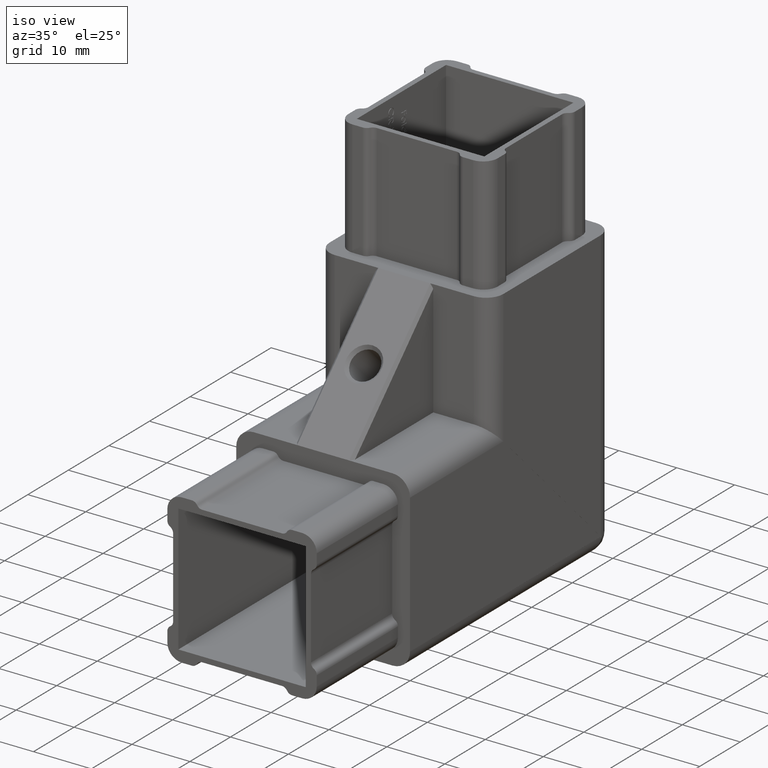
[diagram: clean part render]
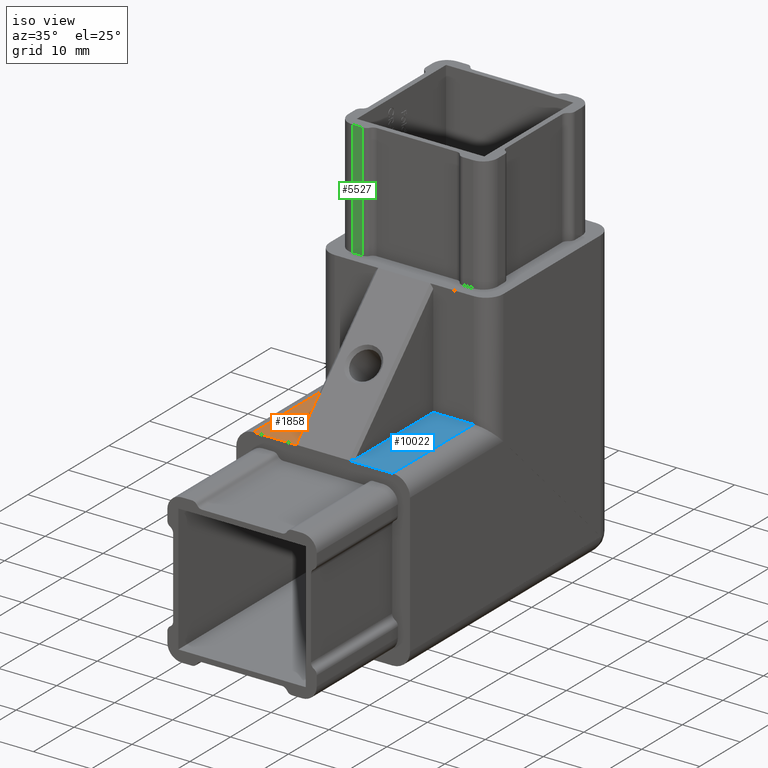
[diagram: same view with three faces highlighted in distinct colors, each labeled with its STEP entity id]
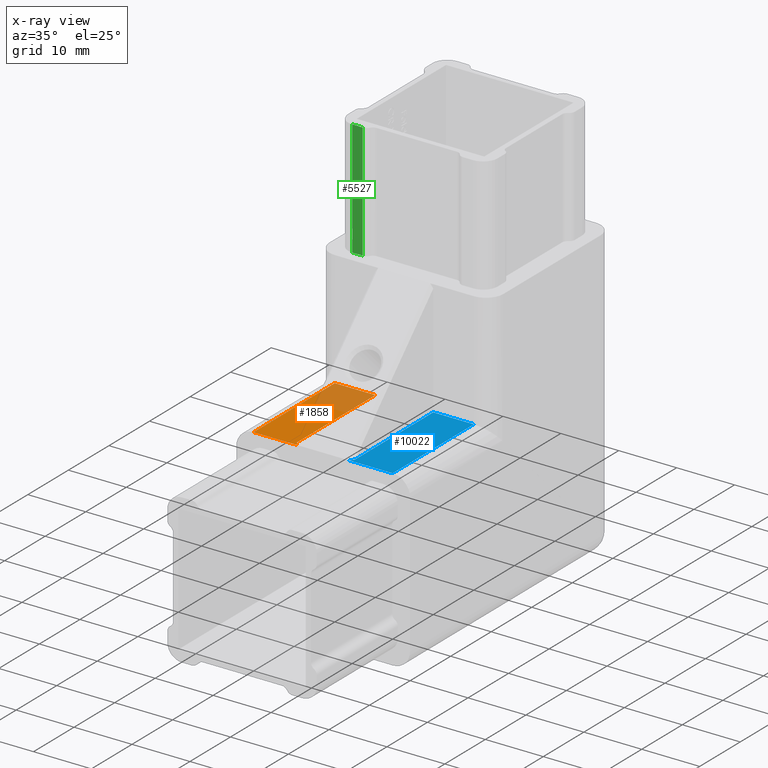
[diagram: x-ray of the same camera — body ghosted, the three highlighted faces saturated]
A machine part, iso view with three faces highlighted in distinct colors.
The next image is the same camera in x-ray (body ghosted, the three faces saturated) — at least one of them is partly hidden behind the body in this view.
Their STEP definitions:

[orange] entity #1858 — the highlighted planar face has unit normal (0, 0, 1).
#195 = CARTESIAN_POINT ( 'NONE',  ( 3.000000000000000000, -3.673940397442059200E-015, 30.00000000000000000 ) ) ;
#306 = VERTEX_POINT ( 'NONE', #8809 ) ;
#424 = CARTESIAN_POINT ( 'NONE',  ( 17.57106781194546100, -9.999999999773818300, 30.00000000000000000 ) ) ;
#877 = ORIENTED_EDGE ( 'NONE', *, *, #3693, .T. ) ;
#1858 = ADVANCED_FACE ( 'NONE', ( #12267 ), #5486, .T. ) ;
#2071 = VECTOR ( 'NONE', #10798, 1000.000000000000100 ) ;
#3693 = EDGE_CURVE ( 'NONE', #5043, #306, #6792, .T. ) ;
#4381 = LINE ( 'NONE', #15672, #14923 ) ;
#4666 = CARTESIAN_POINT ( 'NONE',  ( 9.999999998742323400, 500000.0000000000600, 29.99999999997271500 ) ) ;
#5043 = VERTEX_POINT ( 'NONE', #15084 ) ;
#5434 = VERTEX_POINT ( 'NONE', #5964 ) ;
#5486 = PLANE ( 'NONE',  #6763 ) ;
#5542 = DIRECTION ( 'NONE',  ( 1.000000000000000000, 0.0000000000000000000, -0.0000000000000000000 ) ) ;
#5903 = EDGE_LOOP ( 'NONE', ( #8791, #14372, #9453, #877, #14853 ) ) ;
#5964 = CARTESIAN_POINT ( 'NONE',  ( 2.999999999999999100, -3.673940397442059200E-015, 30.00000000000000000 ) ) ;
#6763 = AXIS2_PLACEMENT_3D ( 'NONE', #6797, #11965, #5542 ) ;
#6792 = LINE ( 'NONE', #424, #2071 ) ;
#6797 = CARTESIAN_POINT ( 'NONE',  ( 30.00000000000000000, -3.673940397442059200E-015, 30.00000000000000000 ) ) ;
#6959 = LINE ( 'NONE', #16630, #9171 ) ;
#7110 = LINE ( 'NONE', #195, #10110 ) ;
#7925 = DIRECTION ( 'NONE',  ( -1.000000000000000000, -0.0000000000000000000, -0.0000000000000000000 ) ) ;
#7933 = EDGE_CURVE ( 'NONE', #5043, #5434, #4381, .T. ) ;
#8604 = EDGE_CURVE ( 'NONE', #306, #8611, #9629, .T. ) ;
#8611 = VERTEX_POINT ( 'NONE', #11151 ) ;
#8791 = ORIENTED_EDGE ( 'NONE', *, *, #11155, .T. ) ;
#8809 = CARTESIAN_POINT ( 'NONE',  ( 9.999999999999996400, 0.7071067811921238900, 29.99999999997271500 ) ) ;
#9171 = VECTOR ( 'NONE', #13979, 1000.000000000000000 ) ;
#9453 = ORIENTED_EDGE ( 'NONE', *, *, #7933, .F. ) ;
#9629 = LINE ( 'NONE', #4666, #10821 ) ;
#10110 = VECTOR ( 'NONE', #13201, 1000.000000000000000 ) ;
#10148 = VERTEX_POINT ( 'NONE', #13803 ) ;
#10798 = DIRECTION ( 'NONE',  ( -0.5773502692026851700, 0.8164965809184915300, -0.0000000000000000000 ) ) ;
#10821 = VECTOR ( 'NONE', #13717, 1000.000000000000000 ) ;
#11151 = CARTESIAN_POINT ( 'NONE',  ( 9.999999999999948500, 20.00000000000876100, 29.99999999997271500 ) ) ;
#11155 = EDGE_CURVE ( 'NONE', #8611, #10148, #6959, .T. ) ;
#11965 = DIRECTION ( 'NONE',  ( 0.0000000000000000000, 0.0000000000000000000, 1.000000000000000000 ) ) ;
#12267 = FACE_OUTER_BOUND ( 'NONE', #5903, .T. ) ;
#13201 = DIRECTION ( 'NONE',  ( -0.0000000000000000000, -1.000000000000000000, 0.0000000000000000000 ) ) ;
#13717 = DIRECTION ( 'NONE',  ( -2.515349040166371100E-015, 1.000000000000000000, 0.0000000000000000000 ) ) ;
#13803 = CARTESIAN_POINT ( 'NONE',  ( 2.999999999999999100, 20.00000000000000000, 30.00000000000000000 ) ) ;
#13918 = EDGE_CURVE ( 'NONE', #10148, #5434, #7110, .T. ) ;
#13979 = DIRECTION ( 'NONE',  ( -1.000000000000000000, -0.0000000000000000000, -0.0000000000000000000 ) ) ;
#14372 = ORIENTED_EDGE ( 'NONE', *, *, #13918, .T. ) ;
#14853 = ORIENTED_EDGE ( 'NONE', *, *, #8604, .T. ) ;
#14923 = VECTOR ( 'NONE', #7925, 1000.000000000000000 ) ;
#15084 = CARTESIAN_POINT ( 'NONE',  ( 10.50000000000000200, -3.673940397442059200E-015, 30.00000000000000000 ) ) ;
#15672 = CARTESIAN_POINT ( 'NONE',  ( 30.00000000000000000, -3.673940397442059200E-015, 30.00000000000000000 ) ) ;
#16630 = CARTESIAN_POINT ( 'NONE',  ( 30.00000000000000000, 20.00000000000000000, 30.00000000000000000 ) ) ;

[blue] entity #10022 — the highlighted planar face has unit normal (0, 0, 1).
#29 = FACE_OUTER_BOUND ( 'NONE', #2370, .T. ) ;
#2269 = CARTESIAN_POINT ( 'NONE',  ( 27.00000000000000000, 20.00000000000000000, 30.00000000000000000 ) ) ;
#2370 = EDGE_LOOP ( 'NONE', ( #16663, #8453, #16582, #13218, #3309 ) ) ;
#2373 = VECTOR ( 'NONE', #9723, 1000.000000000000000 ) ;
#2577 = CARTESIAN_POINT ( 'NONE',  ( 27.00000000000000000, -3.673940397442059200E-015, 30.00000000000000000 ) ) ;
#3309 = ORIENTED_EDGE ( 'NONE', *, *, #10285, .T. ) ;
#3332 = VECTOR ( 'NONE', #6204, 1000.000000000000000 ) ;
#3471 = CARTESIAN_POINT ( 'NONE',  ( 19.99999999999995000, 20.00000000000876100, 29.99999999997271500 ) ) ;
#4084 = CARTESIAN_POINT ( 'NONE',  ( 19.49999999999998200, -1.734723475976807100E-015, 29.99999999999999600 ) ) ;
#4544 = LINE ( 'NONE', #6373, #7978 ) ;
#4603 = CARTESIAN_POINT ( 'NONE',  ( 30.00000000000000000, -3.673940397442059200E-015, 30.00000000000000000 ) ) ;
#5278 = AXIS2_PLACEMENT_3D ( 'NONE', #14451, #11017, #12210 ) ;
#5430 = LINE ( 'NONE', #4603, #16167 ) ;
#5614 = VERTEX_POINT ( 'NONE', #8983 ) ;
#5649 = EDGE_CURVE ( 'NONE', #9478, #9459, #5430, .T. ) ;
#5859 = LINE ( 'NONE', #12362, #2373 ) ;
#6038 = VERTEX_POINT ( 'NONE', #3471 ) ;
#6204 = DIRECTION ( 'NONE',  ( 2.515349040166371100E-015, -1.000000000000000000, 0.0000000000000000000 ) ) ;
#6373 = CARTESIAN_POINT ( 'NONE',  ( 12.42893218805452400, -9.999999999773571300, 30.00000000000000000 ) ) ;
#6590 = EDGE_CURVE ( 'NONE', #9478, #15626, #9050, .T. ) ;
#7201 = DIRECTION ( 'NONE',  ( -1.000000000000000000, -0.0000000000000000000, -0.0000000000000000000 ) ) ;
#7437 = VECTOR ( 'NONE', #12951, 1000.000000000000000 ) ;
#7705 = CARTESIAN_POINT ( 'NONE',  ( 27.00000000000000000, -3.673940397442059200E-015, 30.00000000000000000 ) ) ;
#7978 = VECTOR ( 'NONE', #11671, 1000.000000000000000 ) ;
#8453 = ORIENTED_EDGE ( 'NONE', *, *, #6590, .T. ) ;
#8983 = CARTESIAN_POINT ( 'NONE',  ( 19.99999999999999600, 0.7071067811921238900, 29.99999999997271500 ) ) ;
#8992 = EDGE_CURVE ( 'NONE', #6038, #5614, #11606, .T. ) ;
#9050 = LINE ( 'NONE', #7705, #7437 ) ;
#9459 = VERTEX_POINT ( 'NONE', #4084 ) ;
#9478 = VERTEX_POINT ( 'NONE', #2577 ) ;
#9723 = DIRECTION ( 'NONE',  ( -1.000000000000000000, -0.0000000000000000000, -0.0000000000000000000 ) ) ;
#10022 = ADVANCED_FACE ( 'NONE', ( #29 ), #13424, .T. ) ;
#10285 = EDGE_CURVE ( 'NONE', #5614, #9459, #4544, .T. ) ;
#11017 = DIRECTION ( 'NONE',  ( 0.0000000000000000000, 0.0000000000000000000, 1.000000000000000000 ) ) ;
#11606 = LINE ( 'NONE', #12645, #3332 ) ;
#11671 = DIRECTION ( 'NONE',  ( -0.5773502692026945000, -0.8164965809184850900, -0.0000000000000000000 ) ) ;
#12210 = DIRECTION ( 'NONE',  ( 1.000000000000000000, 0.0000000000000000000, -0.0000000000000000000 ) ) ;
#12362 = CARTESIAN_POINT ( 'NONE',  ( 30.00000000000000000, 20.00000000000000000, 30.00000000000000000 ) ) ;
#12645 = CARTESIAN_POINT ( 'NONE',  ( 19.99999999874232500, 500000.0000000000600, 29.99999999997271500 ) ) ;
#12951 = DIRECTION ( 'NONE',  ( 0.0000000000000000000, 1.000000000000000000, 0.0000000000000000000 ) ) ;
#13218 = ORIENTED_EDGE ( 'NONE', *, *, #8992, .T. ) ;
#13424 = PLANE ( 'NONE',  #5278 ) ;
#14451 = CARTESIAN_POINT ( 'NONE',  ( 30.00000000000000000, -3.673940397442059200E-015, 30.00000000000000000 ) ) ;
#15626 = VERTEX_POINT ( 'NONE', #2269 ) ;
#15917 = EDGE_CURVE ( 'NONE', #15626, #6038, #5859, .T. ) ;
#16167 = VECTOR ( 'NONE', #7201, 1000.000000000000000 ) ;
#16582 = ORIENTED_EDGE ( 'NONE', *, *, #15917, .T. ) ;
#16663 = ORIENTED_EDGE ( 'NONE', *, *, #5649, .F. ) ;

[green] entity #5527 — the highlighted planar face has unit normal (-0, 1, 0).
#820 = VERTEX_POINT ( 'NONE', #10471 ) ;
#1040 = DIRECTION ( 'NONE',  ( -6.723734403010877900E-016, 1.000000000000000000, 0.0000000000000000000 ) ) ;
#1043 = VECTOR ( 'NONE', #15808, 1000.000000000000000 ) ;
#1263 = EDGE_CURVE ( 'NONE', #820, #5720, #14232, .T. ) ;
#1354 = CARTESIAN_POINT ( 'NONE',  ( 6.367949192431129100, 22.09999999999998400, 69.99999999999998600 ) ) ;
#1645 = ORIENTED_EDGE ( 'NONE', *, *, #4798, .T. ) ;
#2465 = LINE ( 'NONE', #6761, #1043 ) ;
#3213 = LINE ( 'NONE', #14806, #14153 ) ;
#3277 = EDGE_CURVE ( 'NONE', #820, #9630, #6580, .T. ) ;
#4116 = ORIENTED_EDGE ( 'NONE', *, *, #3277, .T. ) ;
#4798 = EDGE_CURVE ( 'NONE', #9630, #13775, #3213, .T. ) ;
#5487 = DIRECTION ( 'NONE',  ( 0.0000000000000000000, 0.0000000000000000000, -1.000000000000000000 ) ) ;
#5527 = ADVANCED_FACE ( 'NONE', ( #10074 ), #8794, .F. ) ;
#5720 = VERTEX_POINT ( 'NONE', #1354 ) ;
#6541 = ORIENTED_EDGE ( 'NONE', *, *, #1263, .F. ) ;
#6543 = VECTOR ( 'NONE', #10629, 1000.000000000000000 ) ;
#6580 = LINE ( 'NONE', #13303, #13475 ) ;
#6761 = CARTESIAN_POINT ( 'NONE',  ( 6.367949192431129100, 22.09999999999998400, 69.99999999999998600 ) ) ;
#7013 = AXIS2_PLACEMENT_3D ( 'NONE', #11427, #1040, #16579 ) ;
#8794 = PLANE ( 'NONE',  #7013 ) ;
#9304 = CARTESIAN_POINT ( 'NONE',  ( 2.099999999999990800, 22.09999999999998000, 69.99999999999998600 ) ) ;
#9525 = CARTESIAN_POINT ( 'NONE',  ( 4.599999999999994300, 22.09999999999998000, 49.99999999999998600 ) ) ;
#9630 = VERTEX_POINT ( 'NONE', #9525 ) ;
#9668 = EDGE_CURVE ( 'NONE', #13775, #5720, #2465, .T. ) ;
#10074 = FACE_OUTER_BOUND ( 'NONE', #12592, .T. ) ;
#10269 = ORIENTED_EDGE ( 'NONE', *, *, #9668, .T. ) ;
#10471 = CARTESIAN_POINT ( 'NONE',  ( 4.599999999999994300, 22.09999999999998000, 69.99999999999998600 ) ) ;
#10629 = DIRECTION ( 'NONE',  ( 1.000000000000000000, 6.723734403010877900E-016, 0.0000000000000000000 ) ) ;
#11427 = CARTESIAN_POINT ( 'NONE',  ( 2.099999999999990800, 22.09999999999998000, 69.99999999999998600 ) ) ;
#12337 = CARTESIAN_POINT ( 'NONE',  ( 6.367949192431129100, 22.09999999999998400, 49.99999999999998600 ) ) ;
#12592 = EDGE_LOOP ( 'NONE', ( #1645, #10269, #6541, #4116 ) ) ;
#13303 = CARTESIAN_POINT ( 'NONE',  ( 4.599999999999994300, 22.09999999999998000, 69.99999999999998600 ) ) ;
#13475 = VECTOR ( 'NONE', #5487, 1000.000000000000000 ) ;
#13775 = VERTEX_POINT ( 'NONE', #12337 ) ;
#14153 = VECTOR ( 'NONE', #16089, 1000.000000000000000 ) ;
#14232 = LINE ( 'NONE', #9304, #6543 ) ;
#14806 = CARTESIAN_POINT ( 'NONE',  ( 2.099999999999990800, 22.09999999999998000, 49.99999999999998600 ) ) ;
#15808 = DIRECTION ( 'NONE',  ( -0.0000000000000000000, -0.0000000000000000000, 1.000000000000000000 ) ) ;
#16089 = DIRECTION ( 'NONE',  ( 1.000000000000000000, 6.723734403010877900E-016, 0.0000000000000000000 ) ) ;
#16579 = DIRECTION ( 'NONE',  ( -1.000000000000000000, -6.723734403010877900E-016, 0.0000000000000000000 ) ) ;